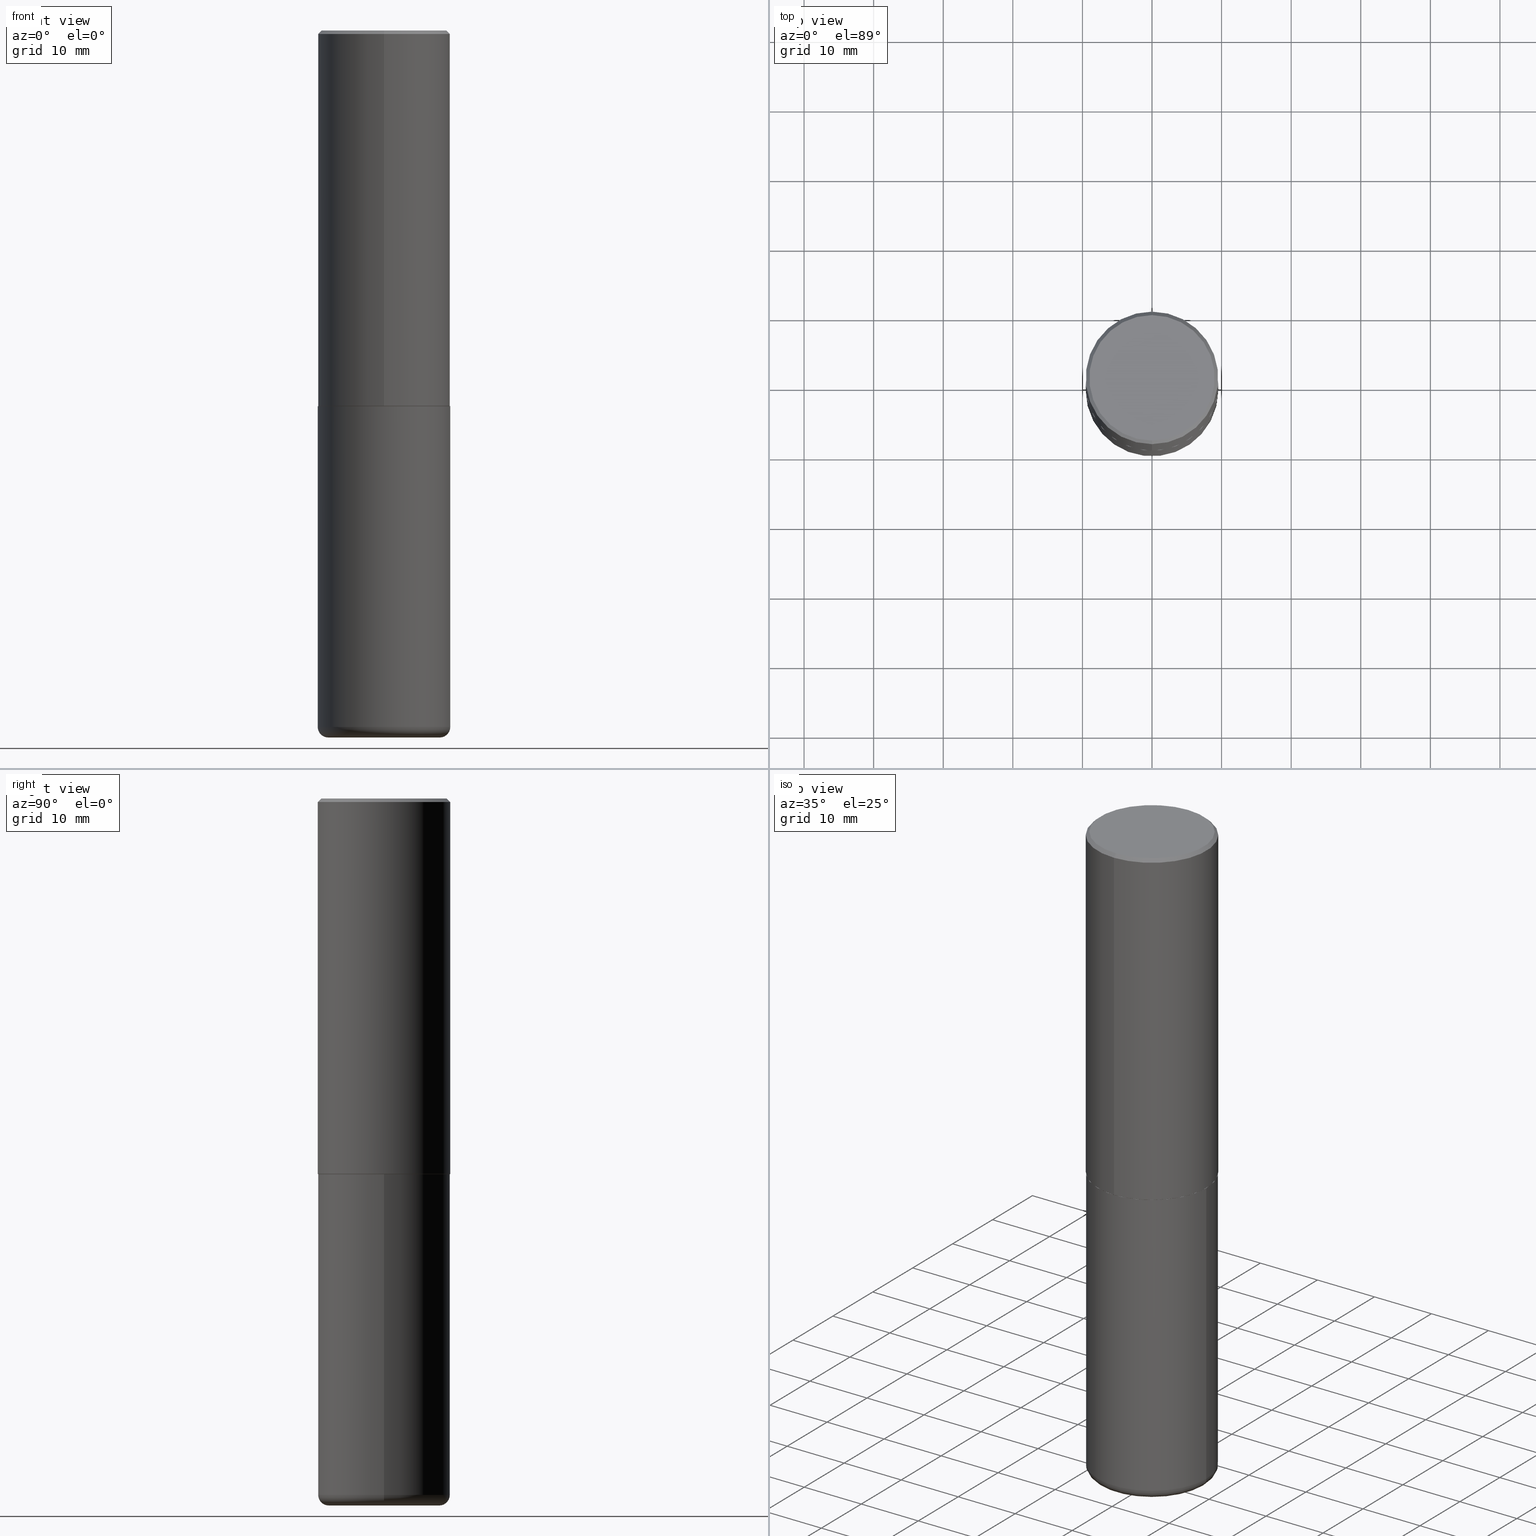
[diagram: canonical four-view strip — front | top / right | iso, engineering-drawing reading convention]
A machine part, canonical four-view strip (front | top / right | iso — engineering-drawing reading convention). The complete STEP part file that produces these views, byte-faithful:
ISO-10303-21;
HEADER;
FILE_DESCRIPTION (( 'STEP AP203' ),
    '1' );
FILE_NAME ('77254.STEP',
    '2024-03-06T16:40:15',
    ( '' ),
    ( '' ),
    'SwSTEP 2.0',
    'SolidWorks 2023',
    '' );
FILE_SCHEMA (( 'CONFIG_CONTROL_DESIGN' ));
ENDSEC;

DATA;
#1 = CARTESIAN_POINT ( 'NONE',  ( 5.194774663215162724E-29, -7.422042209638035708E-15, -2.125000000000000000 ) ) ;
#2 = DIRECTION ( 'NONE',  ( -6.982962677686266711E-15, -1.000000000000000000, 3.652203200085913145E-15 ) ) ;
#3 = CIRCLE ( 'NONE', #218, 0.3150000000000000577 ) ;
#4 = CARTESIAN_POINT ( 'NONE',  ( 9.781875224740547508E-29, -1.396592535537258391E-14, -4.000000000000000888 ) ) ;
#5 = FACE_OUTER_BOUND ( 'NONE', #271, .T. ) ;
#6 = ADVANCED_FACE ( 'NONE', ( #246 ), #180, .T. ) ;
#7 = PERSON_AND_ORGANIZATION_ROLE ( 'classification_officer' ) ;
#8 = CIRCLE ( 'NONE', #277, 0.3750000000000001110 ) ;
#9 = DATE_AND_TIME ( #393, #55 ) ;
#10 = CARTESIAN_POINT ( 'NONE',  ( 4.889199683026055945E-31, -6.985451491424065481E-17, -0.02000000000000008715 ) ) ;
#11 = CARTESIAN_POINT ( 'NONE',  ( 4.937077108964127883E-29, -2.090395200594848418E-14, -4.000000000000000000 ) ) ;
#12 = ORIENTED_EDGE ( 'NONE', *, *, #88, .T. ) ;
#13 = CIRCLE ( 'NONE', #145, 0.3549999999999999822 ) ;
#14 = DIRECTION ( 'NONE',  ( -6.982962677686265922E-15, -1.000000000000000000, 3.494488891895535640E-15 ) ) ;
#15 = AXIS2_PLACEMENT_3D ( 'NONE', #10, #343, #336 ) ;
#16 = EDGE_LOOP ( 'NONE', ( #206, #339, #211, #337 ) ) ;
#17 = EDGE_CURVE ( 'NONE', #182, #141, #106, .T. ) ;
#18 = DIRECTION ( 'NONE',  ( -6.982962677686266711E-15, -1.000000000000000000, 3.492725745712018196E-15 ) ) ;
#19 = EDGE_LOOP ( 'NONE', ( #368, #50, #21, #45 ) ) ;
#20 = FACE_OUTER_BOUND ( 'NONE', #53, .T. ) ;
#21 = ORIENTED_EDGE ( 'NONE', *, *, #412, .F. ) ;
#22 = CONICAL_SURFACE ( 'NONE', #15, 0.3750000000000001110, 0.7853981633974477239 ) ;
#23 = VERTEX_POINT ( 'NONE', #250 ) ;
#24 =( CONVERSION_BASED_UNIT ( 'INCH', #309 ) LENGTH_UNIT ( ) NAMED_UNIT ( #202 ) );
#25 = DIRECTION ( 'NONE',  ( -2.445468806185136597E-29, 3.491481338843145583E-15, 1.000000000000000000 ) ) ;
#26 = CARTESIAN_POINT ( 'NONE',  ( -2.611628041454611937E-15, -0.3740000000000074931, -2.124999999999998668 ) ) ;
#27 = CARTESIAN_POINT ( 'NONE',  ( 2.664535259100376880E-15, 0.3750000000000002220, -1.309772154642007612E-15 ) ) ;
#28 = AXIS2_PLACEMENT_3D ( 'NONE', #200, #298, #239 ) ;
#29 = COORDINATED_UNIVERSAL_TIME_OFFSET ( 5, 0, .BEHIND. ) ;
#30 = CARTESIAN_POINT ( 'NONE',  ( 5.194774663215162724E-29, -7.422042209638035708E-15, -2.125000000000000000 ) ) ;
#31 = ORIENTED_EDGE ( 'NONE', *, *, #215, .F. ) ;
#32 = CIRCLE ( 'NONE', #46, 0.3750000000000002776 ) ;
#33 = DIRECTION ( 'NONE',  ( 4.937700262164544887E-15, 0.7071067811865446862, -0.7071067811865503483 ) ) ;
#34 = ADVANCED_FACE ( 'NONE', ( #89 ), #386, .T. ) ;
#35 = DIRECTION ( 'NONE',  ( -6.982962677686265922E-15, -1.000000000000000000, 3.492725745712017407E-15 ) ) ;
#36 = APPROVAL ( #185, 'UNSPECIFIED' ) ;
#37 = AXIS2_PLACEMENT_3D ( 'NONE', #355, #289, #128 ) ;
#38 = AXIS2_PLACEMENT_3D ( 'NONE', #183, #305, #408 ) ;
#39 = COORDINATED_UNIVERSAL_TIME_OFFSET ( 5, 0, .BEHIND. ) ;
#40 = LINE ( 'NONE', #167, #226 ) ;
#41 = ORIENTED_EDGE ( 'NONE', *, *, #187, .F. ) ;
#42 = DATE_AND_TIME ( #327, #288 ) ;
#43 = PLANE ( 'NONE',  #235 ) ;
#44 = EDGE_CURVE ( 'NONE', #234, #168, #372, .T. ) ;
#45 = ORIENTED_EDGE ( 'NONE', *, *, #88, .F. ) ;
#46 = AXIS2_PLACEMENT_3D ( 'NONE', #210, #367, #294 ) ;
#47 = DIRECTION ( 'NONE',  ( -2.445468806185136877E-29, 3.491481338843145188E-15, 1.000000000000000000 ) ) ;
#48 = ORIENTED_EDGE ( 'NONE', *, *, #198, .T. ) ;
#49 = FACE_OUTER_BOUND ( 'NONE', #85, .T. ) ;
#50 = ORIENTED_EDGE ( 'NONE', *, *, #44, .T. ) ;
#51 = CC_DESIGN_PERSON_AND_ORGANIZATION_ASSIGNMENT ( #199, #7, ( #300 ) ) ;
#52 = CARTESIAN_POINT ( 'NONE',  ( 2.478951750578624209E-15, 0.3549999999999999822, -1.207682913832788389E-15 ) ) ;
#53 = EDGE_LOOP ( 'NONE', ( #376, #267 ) ) ;
#54 = CONICAL_SURFACE ( 'NONE', #353, 0.3739999999999999991, 0.7853981633975507526 ) ;
#55 = LOCAL_TIME ( 11, 40, 15.00000000000000000, #29 ) ;
#56 = DIRECTION ( 'NONE',  ( 2.444599841513017620E-29, -3.492725745712017802E-15, -1.000000000000000000 ) ) ;
#57 =( NAMED_UNIT ( * ) PLANE_ANGLE_UNIT ( ) SI_UNIT ( $, .RADIAN. ) );
#58 = CARTESIAN_POINT ( 'NONE',  ( -0.3750000000000000555, -7.923381900941463910E-15, -2.125000000000000000 ) ) ;
#59 = APPLICATION_CONTEXT ( 'configuration controlled 3d designs of mechanical parts and assemblies' ) ;
#60 = ORIENTED_EDGE ( 'NONE', *, *, #17, .F. ) ;
#61 = APPROVAL_DATE_TIME ( #93, #36 ) ;
#62 = ORIENTED_EDGE ( 'NONE', *, *, #311, .T. ) ;
#63 = EDGE_CURVE ( 'NONE', #141, #182, #307, .T. ) ;
#64 = DIRECTION ( 'NONE',  ( -2.444599841513017620E-29, 3.492725745712017802E-15, 1.000000000000000000 ) ) ;
#65 = CARTESIAN_POINT ( 'NONE',  ( 2.618611004132351200E-15, 0.3750000000000000555, -0.02000000000000139513 ) ) ;
#66 = DIRECTION ( 'NONE',  ( -2.444599841513017620E-29, 3.492725745712017802E-15, 1.000000000000000000 ) ) ;
#67 = AXIS2_PLACEMENT_3D ( 'NONE', #377, #94, #352 ) ;
#68 = LOCAL_TIME ( 11, 40, 15.00000000000000000, #417 ) ;
#69 = DIRECTION ( 'NONE',  ( 1.000000000000000000, 0.000000000000000000, 0.000000000000000000 ) ) ;
#70 = DIRECTION ( 'NONE',  ( 1.000000000000000000, -6.982962677686263555E-15, 4.883557194083111219E-29 ) ) ;
#71 = ADVANCED_FACE ( 'NONE', ( #153 ), #124, .T. ) ;
#72 = LINE ( 'NONE', #162, #243 ) ;
#73 = SHAPE_DEFINITION_REPRESENTATION ( #348, #178 ) ;
#74 = APPROVAL_STATUS ( 'not_yet_approved' ) ;
#75 = CIRCLE ( 'NONE', #219, 0.3750000000000002776 ) ;
#76 = DIRECTION ( 'NONE',  ( 1.000000000000000000, -6.982962677686265922E-15, 4.876176775795935793E-29 ) ) ;
#77 = ORIENTED_EDGE ( 'NONE', *, *, #396, .T. ) ;
#78 = CC_DESIGN_PERSON_AND_ORGANIZATION_ASSIGNMENT ( #103, #366, ( #129 ) ) ;
#79 = CARTESIAN_POINT ( 'NONE',  ( -0.3150000000000000577, -1.140980847683494193E-14, -4.000000000000000888 ) ) ;
#80 = VERTEX_POINT ( 'NONE', #121 ) ;
#81 = LINE ( 'NONE', #131, #358 ) ;
#82 = ORIENTED_EDGE ( 'NONE', *, *, #101, .T. ) ;
#83 = VECTOR ( 'NONE', #303, 39.37007874015748143 ) ;
#84 = DIRECTION ( 'NONE',  ( -6.982962677686266711E-15, -1.000000000000000000, 3.492725745712018196E-15 ) ) ;
#85 = EDGE_LOOP ( 'NONE', ( #179, #242, #152, #135 ) ) ;
#86 = CC_DESIGN_PERSON_AND_ORGANIZATION_ASSIGNMENT ( #154, #387, ( #415 ) ) ;
#87 = PLANE ( 'NONE',  #391 ) ;
#88 = EDGE_CURVE ( 'NONE', #139, #23, #163, .T. ) ;
#89 = FACE_OUTER_BOUND ( 'NONE', #108, .T. ) ;
#90 = CIRCLE ( 'NONE', #150, 0.3150000000000000577 ) ;
#91 = DIRECTION ( 'NONE',  ( -2.444599841513017620E-29, 3.492725745712017802E-15, 1.000000000000000000 ) ) ;
#92 = APPLICATION_PROTOCOL_DEFINITION ( 'international standard', 'config_control_design', 1994, #59 ) ;
#93 = DATE_AND_TIME ( #382, #68 ) ;
#94 = DIRECTION ( 'NONE',  ( -2.444599841513017620E-29, 3.492725745712017802E-15, 1.000000000000000000 ) ) ;
#95 = CARTESIAN_POINT ( 'NONE',  ( 9.635147096369438236E-29, -1.375643647504199401E-14, -3.939999999999999947 ) ) ;
#96 = TOROIDAL_SURFACE ( 'NONE', #380, 0.3150000000000000577, 0.06000000000000021289 ) ;
#97 = APPLICATION_PROTOCOL_DEFINITION ( 'international standard', 'config_control_design', 1994, #342 ) ;
#98 = DIRECTION ( 'NONE',  ( 1.000000000000000000, -6.982962677686266711E-15, 0.000000000000000000 ) ) ;
#99 = CARTESIAN_POINT ( 'NONE',  ( 5.194774663215162724E-29, -7.422042209638035708E-15, -2.125000000000000000 ) ) ;
#100 = DESIGN_CONTEXT ( 'detailed design', #342, 'design' ) ;
#101 = EDGE_CURVE ( 'NONE', #209, #146, #214, .T. ) ;
#102 = DATE_AND_TIME ( #328, #364 ) ;
#103 = PERSON_AND_ORGANIZATION ( #383, #318 ) ;
#104 = DIRECTION ( 'NONE',  ( 2.438088387897960049E-29, -3.491481338843145188E-15, -1.000000000000000000 ) ) ;
#105 = EDGE_LOOP ( 'NONE', ( #284, #62, #171, #113 ) ) ;
#106 = CIRCLE ( 'NONE', #67, 0.3739999999999999991 ) ;
#107 = DIRECTION ( 'NONE',  ( -2.444599841513017620E-29, 3.492725745712017802E-15, 1.000000000000000000 ) ) ;
#108 = EDGE_LOOP ( 'NONE', ( #213, #117, #201, #304 ) ) ;
#109 = DIRECTION ( 'NONE',  ( -2.445468806185136597E-29, 3.491481338843145583E-15, 1.000000000000000000 ) ) ;
#110 = VERTEX_POINT ( 'NONE', #281 ) ;
#111 = CARTESIAN_POINT ( 'NONE',  ( 0.000000000000000000, 0.000000000000000000, 0.000000000000000000 ) ) ;
#112 = PRODUCT_DEFINITION ( 'UNKNOWN', '', #129, #100 ) ;
#113 = ORIENTED_EDGE ( 'NONE', *, *, #351, .F. ) ;
#114 =( GEOMETRIC_REPRESENTATION_CONTEXT ( 3 ) GLOBAL_UNCERTAINTY_ASSIGNED_CONTEXT ( ( #158 ) ) GLOBAL_UNIT_ASSIGNED_CONTEXT ( ( #24, #57, #410 ) ) REPRESENTATION_CONTEXT ( 'NONE', 'WORKASPACE' ) );
#115 = LINE ( 'NONE', #140, #83 ) ;
#116 = EDGE_LOOP ( 'NONE', ( #174, #31 ) ) ;
#117 = ORIENTED_EDGE ( 'NONE', *, *, #212, .F. ) ;
#118 = CIRCLE ( 'NONE', #347, 0.3750000000000000555 ) ;
#119 = APPROVAL_PERSON_ORGANIZATION ( #164, #326, #357 ) ;
#120 = DIRECTION ( 'NONE',  ( 1.000000000000000000, -6.982962677686267499E-15, 0.000000000000000000 ) ) ;
#121 = CARTESIAN_POINT ( 'NONE',  ( -2.504081769186608610E-15, -0.3549999999999999822, 1.304387091517721851E-15 ) ) ;
#122 = DIRECTION ( 'NONE',  ( -6.982962677686266711E-15, -1.000000000000000000, 3.652203200085913145E-15 ) ) ;
#123 = CARTESIAN_POINT ( 'NONE',  ( -0.3750000000000001110, -1.109190121594161832E-14, -3.939999999999999947 ) ) ;
#124 = TOROIDAL_SURFACE ( 'NONE', #397, 0.3150000000000000577, 0.06000000000000021289 ) ;
#125 = AXIS2_PLACEMENT_3D ( 'NONE', #263, #283, #69 ) ;
#126 = DIRECTION ( 'NONE',  ( -2.445468806185136597E-29, 3.491481338843145583E-15, 1.000000000000000000 ) ) ;
#127 = DIRECTION ( 'NONE',  ( -4.937700262165053702E-15, -0.7071067811866175168, 0.7071067811864775177 ) ) ;
#128 = DIRECTION ( 'NONE',  ( -6.982962677686265922E-15, -1.000000000000000000, 3.492725745712017407E-15 ) ) ;
#129 = PRODUCT_DEFINITION_FORMATION_WITH_SPECIFIED_SOURCE ( 'ANY', '', #415, .NOT_KNOWN. ) ;
#130 = DATE_AND_TIME ( #224, #381 ) ;
#131 = CARTESIAN_POINT ( 'NONE',  ( -2.572686749164324336E-15, -0.3750000000000001665, -0.01999999999999877570 ) ) ;
#132 = EDGE_CURVE ( 'NONE', #238, #299, #354, .T. ) ;
#133 = APPROVAL_DATE_TIME ( #102, #222 ) ;
#134 = DIRECTION ( 'NONE',  ( -1.000000000000000000, 6.982962677686265922E-15, -4.876176775795935793E-29 ) ) ;
#135 = ORIENTED_EDGE ( 'NONE', *, *, #175, .F. ) ;
#136 = CIRCLE ( 'NONE', #329, 0.3750000000000000555 ) ;
#137 = APPROVAL_PERSON_ORGANIZATION ( #356, #36, #315 ) ;
#138 = CYLINDRICAL_SURFACE ( 'NONE', #416, 0.3750000000000002220 ) ;
#139 = VERTEX_POINT ( 'NONE', #151 ) ;
#140 = CARTESIAN_POINT ( 'NONE',  ( 2.657429831742826359E-15, 0.3739999999999925606, -2.125000000000001332 ) ) ;
#141 = VERTEX_POINT ( 'NONE', #26 ) ;
#142 = EDGE_CURVE ( 'NONE', #285, #299, #8, .T. ) ;
#143 = CARTESIAN_POINT ( 'NONE',  ( 0.000000000000000000, 0.000000000000000000, 0.000000000000000000 ) ) ;
#144 = ORIENTED_EDGE ( 'NONE', *, *, #161, .F. ) ;
#145 = AXIS2_PLACEMENT_3D ( 'NONE', #195, #66, #35 ) ;
#146 = VERTEX_POINT ( 'NONE', #58 ) ;
#147 = DIRECTION ( 'NONE',  ( 1.000000000000000000, -6.982962677686266711E-15, 0.000000000000000000 ) ) ;
#148 = EDGE_CURVE ( 'NONE', #139, #234, #3, .T. ) ;
#149 = CARTESIAN_POINT ( 'NONE',  ( 9.781875224740547508E-29, -1.396592535537258391E-14, -4.000000000000000888 ) ) ;
#150 = AXIS2_PLACEMENT_3D ( 'NONE', #4, #126, #256 ) ;
#151 = CARTESIAN_POINT ( 'NONE',  ( 0.3150000000000000577, -1.616555859884375729E-14, -4.000000000000000888 ) ) ;
#152 = ORIENTED_EDGE ( 'NONE', *, *, #142, .F. ) ;
#153 = FACE_OUTER_BOUND ( 'NONE', #247, .T. ) ;
#154 = PERSON_AND_ORGANIZATION ( #383, #318 ) ;
#155 = DIRECTION ( 'NONE',  ( 1.000000000000000000, -6.982962677686266711E-15, 0.000000000000000000 ) ) ;
#156 = AXIS2_PLACEMENT_3D ( 'NONE', #30, #64, #409 ) ;
#157 = DIRECTION ( 'NONE',  ( -2.444599841513017620E-29, 3.492725745712018196E-15, 1.000000000000000000 ) ) ;
#158 = UNCERTAINTY_MEASURE_WITH_UNIT (LENGTH_MEASURE( 1.000000000000000082E-05 ), #24, 'distance_accuracy_value', 'NONE');
#159 = EDGE_CURVE ( 'NONE', #168, #146, #216, .T. ) ;
#160 = CARTESIAN_POINT ( 'NONE',  ( 2.660982545421628047E-15, 0.3739999999999925606, -2.125000000000001332 ) ) ;
#161 = EDGE_CURVE ( 'NONE', #350, #299, #286, .T. ) ;
#162 = CARTESIAN_POINT ( 'NONE',  ( -2.611628041454611937E-15, -0.3740000000000074931, -2.124999999999998668 ) ) ;
#163 = CIRCLE ( 'NONE', #189, 0.06000000000000017819 ) ;
#164 = PERSON_AND_ORGANIZATION ( #383, #318 ) ;
#165 = ADVANCED_FACE ( 'NONE', ( #5 ), #54, .T. ) ;
#166 = CARTESIAN_POINT ( 'NONE',  ( -2.572686749164324336E-15, -0.3750000000000001665, -0.01999999999999877570 ) ) ;
#167 = CARTESIAN_POINT ( 'NONE',  ( 0.3750000000000000555, -2.618611004132350016E-15, 1.828566290923476203E-29 ) ) ;
#168 = VERTEX_POINT ( 'NONE', #123 ) ;
#169 = COORDINATED_UNIVERSAL_TIME_OFFSET ( 5, 0, .BEHIND. ) ;
#170 = DIRECTION ( 'NONE',  ( -6.982962677686266711E-15, -1.000000000000000000, 3.642463991552348591E-15 ) ) ;
#171 = ORIENTED_EDGE ( 'NONE', *, *, #175, .T. ) ;
#172 = VECTOR ( 'NONE', #33, 39.37007874015748143 ) ;
#173 = CARTESIAN_POINT ( 'NONE',  ( 2.618611004132351200E-15, 0.3750000000000000555, -0.02000000000000139513 ) ) ;
#174 = ORIENTED_EDGE ( 'NONE', *, *, #148, .F. ) ;
#175 = EDGE_CURVE ( 'NONE', #110, #285, #254, .T. ) ;
#176 = DIRECTION ( 'NONE',  ( 1.000000000000000000, -6.982962677686265922E-15, 4.876176775795935793E-29 ) ) ;
#177 = ORIENTED_EDGE ( 'NONE', *, *, #181, .F. ) ;
#178 = ADVANCED_BREP_SHAPE_REPRESENTATION ( '77254', ( #221, #362, #125 ), #114 ) ;
#179 = ORIENTED_EDGE ( 'NONE', *, *, #251, .T. ) ;
#180 = CONICAL_SURFACE ( 'NONE', #252, 0.3739999999999999991, 0.7853981633975507526 ) ;
#181 = EDGE_CURVE ( 'NONE', #141, #110, #72, .T. ) ;
#182 = VERTEX_POINT ( 'NONE', #160 ) ;
#183 = CARTESIAN_POINT ( 'NONE',  ( 9.635147096369438236E-29, -1.375643647504199401E-14, -3.939999999999999947 ) ) ;
#184 = DIRECTION ( 'NONE',  ( 7.105427357601001859E-15, 1.000000000000000000, -3.491481338843145583E-15 ) ) ;
#185 = APPROVAL_STATUS ( 'not_yet_approved' ) ;
#186 = DIRECTION ( 'NONE',  ( -1.000000000000000000, 7.105427357601001859E-15, 0.000000000000000000 ) ) ;
#187 = EDGE_CURVE ( 'NONE', #146, #209, #118, .T. ) ;
#188 = PERSON_AND_ORGANIZATION ( #383, #318 ) ;
#189 = AXIS2_PLACEMENT_3D ( 'NONE', #349, #249, #192 ) ;
#190 = APPROVAL_PERSON_ORGANIZATION ( #390, #222, #325 ) ;
#191 = ORIENTED_EDGE ( 'NONE', *, *, #251, .F. ) ;
#192 = DIRECTION ( 'NONE',  ( 1.000000000000000000, -6.982962677686279332E-15, 0.000000000000000000 ) ) ;
#193 = CARTESIAN_POINT ( 'NONE',  ( 9.635147096369438236E-29, -1.375643647504199401E-14, -3.939999999999999947 ) ) ;
#194 = AXIS2_PLACEMENT_3D ( 'NONE', #346, #56, #310 ) ;
#195 = CARTESIAN_POINT ( 'NONE',  ( -1.576020116281570290E-45, 2.251741140787182714E-31, 6.446945178995578068E-17 ) ) ;
#196 = APPROVAL_STATUS ( 'not_yet_approved' ) ;
#197 = DIRECTION ( 'NONE',  ( -2.445468806185136597E-29, 3.491481338843145583E-15, 1.000000000000000000 ) ) ;
#198 = EDGE_CURVE ( 'NONE', #168, #23, #136, .T. ) ;
#199 = PERSON_AND_ORGANIZATION ( #383, #318 ) ;
#200 = CARTESIAN_POINT ( 'NONE',  ( 5.196621213143415268E-29, -7.419397845041683624E-15, -2.125000000000000000 ) ) ;
#201 = ORIENTED_EDGE ( 'NONE', *, *, #161, .T. ) ;
#202 = DIMENSIONAL_EXPONENTS ( 1.000000000000000000, 0.000000000000000000, 0.000000000000000000, 0.000000000000000000, 0.000000000000000000, 0.000000000000000000, 0.000000000000000000 ) ;
#203 = DIRECTION ( 'NONE',  ( -2.444599841513017620E-29, 3.492725745712017802E-15, 1.000000000000000000 ) ) ;
#204 = ORIENTED_EDGE ( 'NONE', *, *, #142, .T. ) ;
#205 = DIRECTION ( 'NONE',  ( -4.851104656540961119E-15, -0.7071067811865495711, -0.7071067811865454633 ) ) ;
#206 = ORIENTED_EDGE ( 'NONE', *, *, #412, .T. ) ;
#207 = AXIS2_PLACEMENT_3D ( 'NONE', #143, #371, #176 ) ;
#208 = FACE_OUTER_BOUND ( 'NONE', #302, .T. ) ;
#209 = VERTEX_POINT ( 'NONE', #293 ) ;
#210 = CARTESIAN_POINT ( 'NONE',  ( 5.192330063373648592E-29, -7.418549483892325607E-15, -2.123999999999999666 ) ) ;
#211 = ORIENTED_EDGE ( 'NONE', *, *, #101, .F. ) ;
#212 = EDGE_CURVE ( 'NONE', #350, #80, #405, .T. ) ;
#213 = ORIENTED_EDGE ( 'NONE', *, *, #230, .F. ) ;
#214 = CIRCLE ( 'NONE', #292, 0.3750000000000000555 ) ;
#215 = EDGE_CURVE ( 'NONE', #234, #139, #90, .T. ) ;
#216 = LINE ( 'NONE', #258, #233 ) ;
#217 = ADVANCED_FACE ( 'NONE', ( #223 ), #96, .T. ) ;
#218 = AXIS2_PLACEMENT_3D ( 'NONE', #149, #413, #120 ) ;
#219 = AXIS2_PLACEMENT_3D ( 'NONE', #265, #275, #170 ) ;
#220 = CARTESIAN_POINT ( 'NONE',  ( 5.196621213143415268E-29, -7.419397845041683624E-15, -2.125000000000000000 ) ) ;
#221 = MANIFOLD_SOLID_BREP ( 'Body-Move/Copy2[1]', #287 ) ;
#222 = APPROVAL ( #196, 'UNSPECIFIED' ) ;
#223 = FACE_OUTER_BOUND ( 'NONE', #19, .T. ) ;
#224 = CALENDAR_DATE ( 2024, 6, 3 ) ;
#225 = DIRECTION ( 'NONE',  ( -2.444599841513017620E-29, 3.492725745712017802E-15, 1.000000000000000000 ) ) ;
#226 = VECTOR ( 'NONE', #47, 39.37007874015748143 ) ;
#227 = CC_DESIGN_SECURITY_CLASSIFICATION ( #300, ( #129 ) ) ;
#228 = EDGE_CURVE ( 'NONE', #80, #350, #13, .T. ) ;
#229 = SECURITY_CLASSIFICATION_LEVEL ( 'unclassified' ) ;
#230 = EDGE_CURVE ( 'NONE', #80, #285, #81, .T. ) ;
#231 = APPROVAL_DATE_TIME ( #42, #326 ) ;
#232 = FACE_OUTER_BOUND ( 'NONE', #296, .T. ) ;
#233 = VECTOR ( 'NONE', #361, 39.37007874015748143 ) ;
#234 = VERTEX_POINT ( 'NONE', #79 ) ;
#235 = AXIS2_PLACEMENT_3D ( 'NONE', #338, #237, #363 ) ;
#236 = EDGE_CURVE ( 'NONE', #23, #209, #40, .T. ) ;
#237 = DIRECTION ( 'NONE',  ( -2.444599841513016780E-29, 3.492725745712018196E-15, 1.000000000000000000 ) ) ;
#238 = VERTEX_POINT ( 'NONE', #404 ) ;
#239 = DIRECTION ( 'NONE',  ( -1.000000000000000000, 6.982962677686265922E-15, -4.876176775795935793E-29 ) ) ;
#240 = ORIENTED_EDGE ( 'NONE', *, *, #198, .F. ) ;
#241 = CYLINDRICAL_SURFACE ( 'NONE', #268, 0.3750000000000000555 ) ;
#242 = ORIENTED_EDGE ( 'NONE', *, *, #132, .T. ) ;
#243 = VECTOR ( 'NONE', #127, 39.37007874015748143 ) ;
#244 = PLANE ( 'NONE',  #308 ) ;
#245 = ORIENTED_EDGE ( 'NONE', *, *, #311, .F. ) ;
#246 = FACE_OUTER_BOUND ( 'NONE', #279, .T. ) ;
#247 = EDGE_LOOP ( 'NONE', ( #306, #406, #12, #240 ) ) ;
#248 = AXIS2_PLACEMENT_3D ( 'NONE', #111, #203, #84 ) ;
#249 = DIRECTION ( 'NONE',  ( -6.982962677686266711E-15, -1.000000000000000000, 3.491481338843145583E-15 ) ) ;
#250 = CARTESIAN_POINT ( 'NONE',  ( 0.3750000000000001110, -1.637504747917434403E-14, -3.939999999999999947 ) ) ;
#251 = EDGE_CURVE ( 'NONE', #110, #238, #32, .T. ) ;
#252 = AXIS2_PLACEMENT_3D ( 'NONE', #1, #418, #122 ) ;
#253 = CC_DESIGN_APPROVAL ( #36, ( #112 ) ) ;
#254 = LINE ( 'NONE', #322, #414 ) ;
#255 = ADVANCED_FACE ( 'NONE', ( #49 ), #340, .T. ) ;
#256 = DIRECTION ( 'NONE',  ( 1.000000000000000000, -6.982962677686267499E-15, 0.000000000000000000 ) ) ;
#257 = PERSON_AND_ORGANIZATION ( #383, #318 ) ;
#258 = CARTESIAN_POINT ( 'NONE',  ( -0.3750000000000000555, 2.664535259100376091E-15, -1.844600658845589598E-29 ) ) ;
#259 = ADVANCED_FACE ( 'NONE', ( #402 ), #262, .T. ) ;
#260 = CIRCLE ( 'NONE', #323, 0.3750000000000001110 ) ;
#261 = COORDINATED_UNIVERSAL_TIME_OFFSET ( 5, 0, .BEHIND. ) ;
#262 = CYLINDRICAL_SURFACE ( 'NONE', #207, 0.3750000000000000555 ) ;
#263 = CARTESIAN_POINT ( 'NONE',  ( 0.000000000000000000, 0.000000000000000000, 0.000000000000000000 ) ) ;
#264 = DATE_TIME_ROLE ( 'creation_date' ) ;
#265 = CARTESIAN_POINT ( 'NONE',  ( 5.192330063373648592E-29, -7.418549483892325607E-15, -2.123999999999999666 ) ) ;
#266 = AXIS2_PLACEMENT_3D ( 'NONE', #320, #184, #186 ) ;
#267 = ORIENTED_EDGE ( 'NONE', *, *, #228, .T. ) ;
#268 = AXIS2_PLACEMENT_3D ( 'NONE', #395, #109, #76 ) ;
#269 = ADVANCED_FACE ( 'NONE', ( #295 ), #87, .T. ) ;
#270 = DIRECTION ( 'NONE',  ( -2.444599841513017620E-29, 3.492725745712017802E-15, 1.000000000000000000 ) ) ;
#271 = EDGE_LOOP ( 'NONE', ( #411, #344, #276, #245 ) ) ;
#272 = FACE_OUTER_BOUND ( 'NONE', #105, .T. ) ;
#273 = ADVANCED_FACE ( 'NONE', ( #398 ), #22, .T. ) ;
#274 = ORIENTED_EDGE ( 'NONE', *, *, #228, .F. ) ;
#275 = DIRECTION ( 'NONE',  ( -2.444599841513017620E-29, 3.492725745712017802E-15, 1.000000000000000000 ) ) ;
#276 = ORIENTED_EDGE ( 'NONE', *, *, #181, .T. ) ;
#277 = AXIS2_PLACEMENT_3D ( 'NONE', #379, #91, #313 ) ;
#278 = DIRECTION ( 'NONE',  ( 6.982962677686265922E-15, 1.000000000000000000, -3.492725745712018196E-15 ) ) ;
#279 = EDGE_LOOP ( 'NONE', ( #341, #77, #191, #177 ) ) ;
#280 = DIRECTION ( 'NONE',  ( -2.444599841513017620E-29, 3.492725745712018196E-15, 1.000000000000000000 ) ) ;
#281 = CARTESIAN_POINT ( 'NONE',  ( -2.618611004132299924E-15, -0.3750000000000077716, -2.123999999999998334 ) ) ;
#282 = VECTOR ( 'NONE', #280, 39.37007874015748143 ) ;
#283 = DIRECTION ( 'NONE',  ( 0.000000000000000000, 0.000000000000000000, 1.000000000000000000 ) ) ;
#284 = ORIENTED_EDGE ( 'NONE', *, *, #132, .F. ) ;
#285 = VERTEX_POINT ( 'NONE', #166 ) ;
#286 = LINE ( 'NONE', #65, #172 ) ;
#287 = CLOSED_SHELL ( 'NONE', ( #259, #217, #321, #290, #71, #269 ) ) ;
#288 = LOCAL_TIME ( 11, 40, 15.00000000000000000, #39 ) ;
#289 = DIRECTION ( 'NONE',  ( -2.444599841513017620E-29, 3.492725745712017802E-15, 1.000000000000000000 ) ) ;
#290 = ADVANCED_FACE ( 'NONE', ( #369 ), #241, .T. ) ;
#291 = ADVANCED_FACE ( 'NONE', ( #232 ), #43, .F. ) ;
#292 = AXIS2_PLACEMENT_3D ( 'NONE', #220, #316, #147 ) ;
#293 = CARTESIAN_POINT ( 'NONE',  ( 0.3750000000000000555, -1.003800884917403364E-14, -2.125000000000000000 ) ) ;
#294 = DIRECTION ( 'NONE',  ( -6.982962677686266711E-15, -1.000000000000000000, 3.642463991552348591E-15 ) ) ;
#295 = FACE_OUTER_BOUND ( 'NONE', #116, .T. ) ;
#296 = EDGE_LOOP ( 'NONE', ( #399, #60 ) ) ;
#297 = DATE_TIME_ROLE ( 'classification_date' ) ;
#298 = DIRECTION ( 'NONE',  ( 2.438088387897960049E-29, -3.491481338843145188E-15, -1.000000000000000000 ) ) ;
#299 = VERTEX_POINT ( 'NONE', #173 ) ;
#300 = SECURITY_CLASSIFICATION ( '', '', #229 ) ;
#301 = CARTESIAN_POINT ( 'NONE',  ( 2.548781377355487507E-15, 0.3549999999999999822, -1.175448187937810043E-15 ) ) ;
#302 = EDGE_LOOP ( 'NONE', ( #82, #374 ) ) ;
#303 = DIRECTION ( 'NONE',  ( 5.024295867788576727E-15, 0.7071067811866224018, 0.7071067811864726327 ) ) ;
#304 = ORIENTED_EDGE ( 'NONE', *, *, #351, .T. ) ;
#305 = DIRECTION ( 'NONE',  ( -2.445468806185136597E-29, 3.491481338843145583E-15, 1.000000000000000000 ) ) ;
#306 = ORIENTED_EDGE ( 'NONE', *, *, #44, .F. ) ;
#307 = CIRCLE ( 'NONE', #156, 0.3739999999999999991 ) ;
#308 = AXIS2_PLACEMENT_3D ( 'NONE', #52, #312, #278 ) ;
#309 = LENGTH_MEASURE_WITH_UNIT ( LENGTH_MEASURE( 0.02539999999999999897 ), #345 );
#310 = DIRECTION ( 'NONE',  ( 6.982962677686265922E-15, 1.000000000000000000, -3.494488891895535640E-15 ) ) ;
#311 = EDGE_CURVE ( 'NONE', #238, #110, #75, .T. ) ;
#312 = DIRECTION ( 'NONE',  ( 2.444599841513016780E-29, -3.492725745712018196E-15, -1.000000000000000000 ) ) ;
#313 = DIRECTION ( 'NONE',  ( -6.982962677686265922E-15, -1.000000000000000000, 3.494488891895535640E-15 ) ) ;
#314 = PRODUCT_RELATED_PRODUCT_CATEGORY ( 'detail', '', ( #415 ) ) ;
#315 = APPROVAL_ROLE ( '' ) ;
#316 = DIRECTION ( 'NONE',  ( -2.445468806185136597E-29, 3.491481338843145583E-15, 1.000000000000000000 ) ) ;
#317 = CLOSED_SHELL ( 'NONE', ( #6, #255, #273, #34, #389, #165, #291, #407 ) ) ;
#318 = ORGANIZATION ( 'UNSPECIFIED', 'UNSPECIFIED', '' ) ;
#319 = PERSON_AND_ORGANIZATION_ROLE ( 'creator' ) ;
#320 = CARTESIAN_POINT ( 'NONE',  ( -0.3150000000000000577, -1.151822685739767881E-14, -3.939999999999999947 ) ) ;
#321 = ADVANCED_FACE ( 'NONE', ( #208 ), #400, .F. ) ;
#322 = CARTESIAN_POINT ( 'NONE',  ( -2.618611004132351594E-15, -0.3750000000000002220, 1.309772154642007612E-15 ) ) ;
#323 = AXIS2_PLACEMENT_3D ( 'NONE', #375, #107, #14 ) ;
#324 = CARTESIAN_POINT ( 'NONE',  ( 9.635147096369438236E-29, -1.375643647504199401E-14, -3.939999999999999947 ) ) ;
#325 = APPROVAL_ROLE ( '' ) ;
#326 = APPROVAL ( #74, 'UNSPECIFIED' ) ;
#327 = CALENDAR_DATE ( 2024, 6, 3 ) ;
#328 = CALENDAR_DATE ( 2024, 6, 3 ) ;
#329 = AXIS2_PLACEMENT_3D ( 'NONE', #324, #197, #155 ) ;
#330 = CIRCLE ( 'NONE', #38, 0.3750000000000000555 ) ;
#331 = PERSON_AND_ORGANIZATION_ROLE ( 'creator' ) ;
#332 = CC_DESIGN_PERSON_AND_ORGANIZATION_ASSIGNMENT ( #188, #319, ( #112 ) ) ;
#333 = MECHANICAL_CONTEXT ( 'NONE', #59, 'mechanical' ) ;
#334 = CARTESIAN_POINT ( 'NONE',  ( 0.000000000000000000, 0.000000000000000000, 0.000000000000000000 ) ) ;
#335 = ORIENTED_EDGE ( 'NONE', *, *, #159, .F. ) ;
#336 = DIRECTION ( 'NONE',  ( 6.982962677686265922E-15, 1.000000000000000000, -3.494488891895535640E-15 ) ) ;
#337 = ORIENTED_EDGE ( 'NONE', *, *, #236, .F. ) ;
#338 = CARTESIAN_POINT ( 'NONE',  ( 5.194774663215162724E-29, -7.422042209638035708E-15, -2.125000000000000000 ) ) ;
#339 = ORIENTED_EDGE ( 'NONE', *, *, #159, .T. ) ;
#340 = CYLINDRICAL_SURFACE ( 'NONE', #248, 0.3750000000000002220 ) ;
#341 = ORIENTED_EDGE ( 'NONE', *, *, #63, .T. ) ;
#342 = APPLICATION_CONTEXT ( 'configuration controlled 3d designs of mechanical parts and assemblies' ) ;
#343 = DIRECTION ( 'NONE',  ( 2.444599841513017620E-29, -3.492725745712017802E-15, -1.000000000000000000 ) ) ;
#344 = ORIENTED_EDGE ( 'NONE', *, *, #17, .T. ) ;
#345 =( LENGTH_UNIT ( ) NAMED_UNIT ( * ) SI_UNIT ( $, .METRE. ) );
#346 = CARTESIAN_POINT ( 'NONE',  ( 4.889199683026055945E-31, -6.985451491424065481E-17, -0.02000000000000008715 ) ) ;
#347 = AXIS2_PLACEMENT_3D ( 'NONE', #388, #360, #98 ) ;
#348 = PRODUCT_DEFINITION_SHAPE ( 'NONE', 'NONE',  #112 ) ;
#349 = CARTESIAN_POINT ( 'NONE',  ( 0.3150000000000000577, -1.595606971851316740E-14, -3.939999999999999947 ) ) ;
#350 = VERTEX_POINT ( 'NONE', #301 ) ;
#351 = EDGE_CURVE ( 'NONE', #299, #285, #260, .T. ) ;
#352 = DIRECTION ( 'NONE',  ( -6.982962677686266711E-15, -1.000000000000000000, 3.652203200085913145E-15 ) ) ;
#353 = AXIS2_PLACEMENT_3D ( 'NONE', #99, #225, #2 ) ;
#354 = LINE ( 'NONE', #27, #282 ) ;
#355 = CARTESIAN_POINT ( 'NONE',  ( -1.576020116281570290E-45, 2.251741140787182714E-31, 6.446945178995578068E-17 ) ) ;
#356 = PERSON_AND_ORGANIZATION ( #383, #318 ) ;
#357 = APPROVAL_ROLE ( '' ) ;
#358 = VECTOR ( 'NONE', #205, 39.37007874015748143 ) ;
#359 = CC_DESIGN_APPROVAL ( #326, ( #300 ) ) ;
#360 = DIRECTION ( 'NONE',  ( -2.445468806185136597E-29, 3.491481338843145583E-15, 1.000000000000000000 ) ) ;
#361 = DIRECTION ( 'NONE',  ( -2.445468806185136877E-29, 3.491481338843145188E-15, 1.000000000000000000 ) ) ;
#362 = MANIFOLD_SOLID_BREP ( 'Body-Move/Copy2[2]', #317 ) ;
#363 = DIRECTION ( 'NONE',  ( -6.982962677686265922E-15, -1.000000000000000000, 3.492725745712018196E-15 ) ) ;
#364 = LOCAL_TIME ( 11, 40, 15.00000000000000000, #169 ) ;
#365 = EDGE_LOOP ( 'NONE', ( #274, #403, #204, #144 ) ) ;
#366 = PERSON_AND_ORGANIZATION_ROLE ( 'design_supplier' ) ;
#367 = DIRECTION ( 'NONE',  ( -2.444599841513017620E-29, 3.492725745712017802E-15, 1.000000000000000000 ) ) ;
#368 = ORIENTED_EDGE ( 'NONE', *, *, #148, .T. ) ;
#369 = FACE_OUTER_BOUND ( 'NONE', #401, .T. ) ;
#370 = ORIENTED_EDGE ( 'NONE', *, *, #236, .T. ) ;
#371 = DIRECTION ( 'NONE',  ( -2.445468806185136597E-29, 3.491481338843145583E-15, 1.000000000000000000 ) ) ;
#372 = CIRCLE ( 'NONE', #266, 0.06000000000000017819 ) ;
#373 = CC_DESIGN_APPROVAL ( #222, ( #129 ) ) ;
#374 = ORIENTED_EDGE ( 'NONE', *, *, #187, .T. ) ;
#375 = CARTESIAN_POINT ( 'NONE',  ( 4.889199683026055945E-31, -6.985451491424065481E-17, -0.02000000000000008715 ) ) ;
#376 = ORIENTED_EDGE ( 'NONE', *, *, #212, .T. ) ;
#377 = CARTESIAN_POINT ( 'NONE',  ( 5.194774663215162724E-29, -7.422042209638035708E-15, -2.125000000000000000 ) ) ;
#378 = CC_DESIGN_DATE_AND_TIME_ASSIGNMENT ( #130, #297, ( #300 ) ) ;
#379 = CARTESIAN_POINT ( 'NONE',  ( 4.889199683026055945E-31, -6.985451491424065481E-17, -0.02000000000000008715 ) ) ;
#380 = AXIS2_PLACEMENT_3D ( 'NONE', #193, #392, #70 ) ;
#381 = LOCAL_TIME ( 11, 40, 15.00000000000000000, #261 ) ;
#382 = CALENDAR_DATE ( 2024, 6, 3 ) ;
#383 = PERSON ( 'UNSPECIFIED', 'UNSPECIFIED', 'UNSPECIFIED', ('UNSPECIFIED'), ('UNSPECIFIED'), ('UNSPECIFIED') ) ;
#384 = CC_DESIGN_DATE_AND_TIME_ASSIGNMENT ( #9, #264, ( #112 ) ) ;
#385 = DIRECTION ( 'NONE',  ( 1.000000000000000000, -6.982962677686263555E-15, 4.883557194083111219E-29 ) ) ;
#386 = CONICAL_SURFACE ( 'NONE', #194, 0.3750000000000001110, 0.7853981633974477239 ) ;
#387 = PERSON_AND_ORGANIZATION_ROLE ( 'design_owner' ) ;
#388 = CARTESIAN_POINT ( 'NONE',  ( 5.196621213143415268E-29, -7.419397845041683624E-15, -2.125000000000000000 ) ) ;
#389 = ADVANCED_FACE ( 'NONE', ( #272 ), #138, .T. ) ;
#390 = PERSON_AND_ORGANIZATION ( #383, #318 ) ;
#391 = AXIS2_PLACEMENT_3D ( 'NONE', #11, #104, #134 ) ;
#392 = DIRECTION ( 'NONE',  ( -2.445468806185136597E-29, 3.491481338843145583E-15, 1.000000000000000000 ) ) ;
#393 = CALENDAR_DATE ( 2024, 6, 3 ) ;
#394 = CC_DESIGN_PERSON_AND_ORGANIZATION_ASSIGNMENT ( #257, #331, ( #129 ) ) ;
#395 = CARTESIAN_POINT ( 'NONE',  ( 0.000000000000000000, 0.000000000000000000, 0.000000000000000000 ) ) ;
#396 = EDGE_CURVE ( 'NONE', #182, #238, #115, .T. ) ;
#397 = AXIS2_PLACEMENT_3D ( 'NONE', #95, #25, #385 ) ;
#398 = FACE_OUTER_BOUND ( 'NONE', #365, .T. ) ;
#399 = ORIENTED_EDGE ( 'NONE', *, *, #63, .F. ) ;
#400 = PLANE ( 'NONE',  #28 ) ;
#401 = EDGE_LOOP ( 'NONE', ( #335, #48, #370, #41 ) ) ;
#402 = FACE_OUTER_BOUND ( 'NONE', #16, .T. ) ;
#403 = ORIENTED_EDGE ( 'NONE', *, *, #230, .T. ) ;
#404 = CARTESIAN_POINT ( 'NONE',  ( 2.664535259100402913E-15, 0.3749999999999928391, -2.124000000000000998 ) ) ;
#405 = CIRCLE ( 'NONE', #37, 0.3549999999999999822 ) ;
#406 = ORIENTED_EDGE ( 'NONE', *, *, #215, .T. ) ;
#407 = ADVANCED_FACE ( 'NONE', ( #20 ), #244, .F. ) ;
#408 = DIRECTION ( 'NONE',  ( 1.000000000000000000, -6.982962677686266711E-15, 0.000000000000000000 ) ) ;
#409 = DIRECTION ( 'NONE',  ( -6.982962677686266711E-15, -1.000000000000000000, 3.652203200085913145E-15 ) ) ;
#410 =( NAMED_UNIT ( * ) SI_UNIT ( $, .STERADIAN. ) SOLID_ANGLE_UNIT ( ) );
#411 = ORIENTED_EDGE ( 'NONE', *, *, #396, .F. ) ;
#412 = EDGE_CURVE ( 'NONE', #23, #168, #330, .T. ) ;
#413 = DIRECTION ( 'NONE',  ( -2.445468806185136597E-29, 3.491481338843145583E-15, 1.000000000000000000 ) ) ;
#414 = VECTOR ( 'NONE', #157, 39.37007874015748143 ) ;
#415 = PRODUCT ( '77254', '77254', '', ( #333 ) ) ;
#416 = AXIS2_PLACEMENT_3D ( 'NONE', #334, #270, #18 ) ;
#417 = COORDINATED_UNIVERSAL_TIME_OFFSET ( 5, 0, .BEHIND. ) ;
#418 = DIRECTION ( 'NONE',  ( -2.444599841513017620E-29, 3.492725745712017802E-15, 1.000000000000000000 ) ) ;
ENDSEC;
END-ISO-10303-21;
